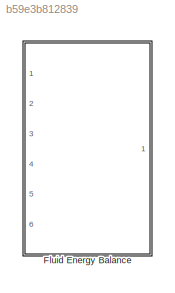
MODEL slx_b59e3b812839
KIND library
CONFIG AbsTol = auto
CONFIG FixedStep = auto
CONFIG MaxStep = auto
CONFIG MinStep = auto
CONFIG RelTol = 1e-3
CONFIG SampleTimeConstraint = Unconstrained
CONFIG Solver = ode45
CONFIG SolverMode = Auto
CONFIG SolverName = ode45
CONFIG StartTime = 0.0
CONFIG StopTime = 10.0
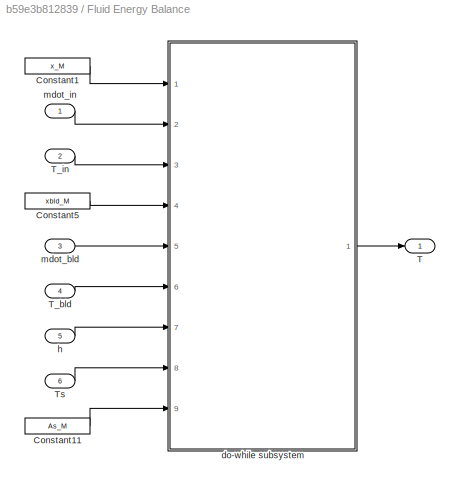
BLOCK [SubSystem] Fluid Energy Balance
  Ports = [6, 1]
  RequestExecContextInheritance = off
BLOCK [Constant] Fluid Energy Balance/Constant1
  Value = x_M
BLOCK [Constant] Fluid Energy Balance/Constant11
  Value = As_M
BLOCK [Constant] Fluid Energy Balance/Constant5
  Value = xbld_M
BLOCK [Outport] Fluid Energy Balance/T
  IconDisplay = Port number
BLOCK [Inport] Fluid Energy Balance/T_bld
  IconDisplay = Port number
  Port = 4
BLOCK [Inport] Fluid Energy Balance/T_in
  IconDisplay = Port number
  Port = 2
BLOCK [Inport] Fluid Energy Balance/Ts
  IconDisplay = Port number
  Port = 6
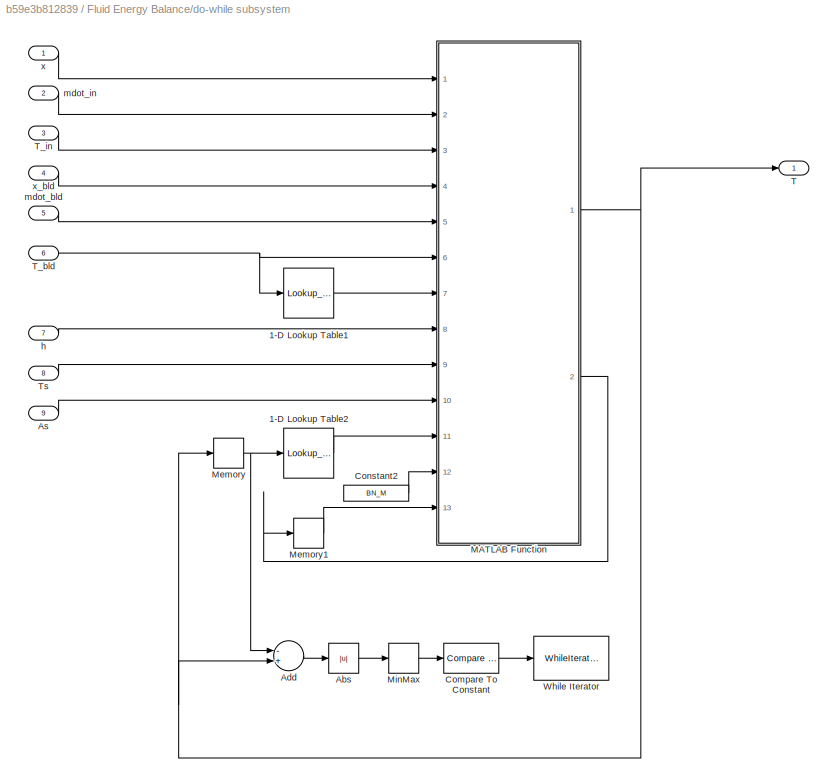
BLOCK [SubSystem] Fluid Energy Balance/do-while subsystem
  Ports = [9, 1]
  RequestExecContextInheritance = off
BLOCK [Lookup_n-D] Fluid Energy Balance/do-while subsystem/1-D Lookup Table1
  BreakpointsForDimension1 = TData_M
  InternalRulePriority = Speed
  NumberOfTableDimensions = 1
  Ports = [1, 1]
  RndMeth = Simplest
  Table = CpData_M
BLOCK [Lookup_n-D] Fluid Energy Balance/do-while subsystem/1-D Lookup Table2
  BreakpointsForDimension1 = TData_M
  InternalRulePriority = Speed
  NumberOfTableDimensions = 1
  Ports = [1, 1]
  RndMeth = Simplest
  Table = CpData_M
BLOCK [Abs] Fluid Energy Balance/do-while subsystem/Abs
  SaturateOnIntegerOverflow = off
BLOCK [Sum] Fluid Energy Balance/do-while subsystem/Add
  InputSameDT = off
  Inputs = -+
  OutDataTypeStr = Inherit: Inherit via internal rule
  Ports = [2, 1]
  SaturateOnIntegerOverflow = off
BLOCK [Inport] Fluid Energy Balance/do-while subsystem/As
  IconDisplay = Port number
  Port = 9
BLOCK [Reference] Fluid Energy Balance/do-while subsystem/Compare To Constant  REF=simulink/Logic and Bit
Operations/Compare
To Constant
  OutDataTypeStr = boolean
  Ports = [1, 1]
  SourceBlock = simulink/Logic and Bit\nOperations/Compare\nTo Constant
  SourceType = Compare To Constant
  ZeroCross = on
  const = 0.001
  relop = >=
BLOCK [Constant] Fluid Energy Balance/do-while subsystem/Constant2
  Value = BN_M
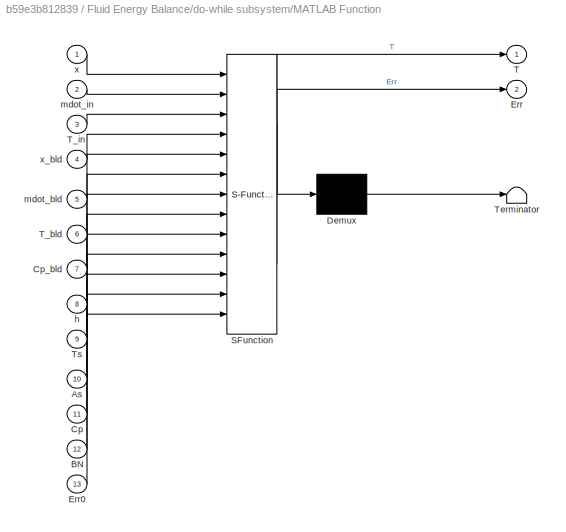
BLOCK [SubSystem] Fluid Energy Balance/do-while subsystem/MATLAB Function
  ErrorFcn = Stateflow.Translate.translate
  PermitHierarchicalResolution = ExplicitOnly
  Ports = [13, 2]
  RequestExecContextInheritance = off
  SFBlockType = MATLAB Function
  TreatAsAtomicUnit = on
BLOCK [Demux] Fluid Energy Balance/do-while subsystem/MATLAB Function/ Demux 
  Outputs = 1
  Ports = [1, 1]
BLOCK [S-Function] Fluid Energy Balance/do-while subsystem/MATLAB Function/ SFunction 
  EnableBusSupport = on
  FunctionName = sf_sfun
  PortCounts = [13 3]
  Ports = [13, 3]
  Tag = Stateflow S-Function lib_Convection_FluidEnergyBalance 1
BLOCK [Terminator] Fluid Energy Balance/do-while subsystem/MATLAB Function/ Terminator 
BLOCK [Inport] Fluid Energy Balance/do-while subsystem/MATLAB Function/As
  IconDisplay = Port number
  Port = 10
BLOCK [Inport] Fluid Energy Balance/do-while subsystem/MATLAB Function/BN
  IconDisplay = Port number
  Port = 12
BLOCK [Inport] Fluid Energy Balance/do-while subsystem/MATLAB Function/Cp
  IconDisplay = Port number
  Port = 11
BLOCK [Inport] Fluid Energy Balance/do-while subsystem/MATLAB Function/Cp_bld
  IconDisplay = Port number
  Port = 7
BLOCK [Outport] Fluid Energy Balance/do-while subsystem/MATLAB Function/Err
  IconDisplay = Port number
  Port = 2
BLOCK [Inport] Fluid Energy Balance/do-while subsystem/MATLAB Function/Err0
  IconDisplay = Port number
  Port = 13
BLOCK [Outport] Fluid Energy Balance/do-while subsystem/MATLAB Function/T
  IconDisplay = Port number
BLOCK [Inport] Fluid Energy Balance/do-while subsystem/MATLAB Function/T_bld
  IconDisplay = Port number
  Port = 6
BLOCK [Inport] Fluid Energy Balance/do-while subsystem/MATLAB Function/T_in
  IconDisplay = Port number
  Port = 3
BLOCK [Inport] Fluid Energy Balance/do-while subsystem/MATLAB Function/Ts
  IconDisplay = Port number
  Port = 9
BLOCK [Inport] Fluid Energy Balance/do-while subsystem/MATLAB Function/h
  IconDisplay = Port number
  Port = 8
BLOCK [Inport] Fluid Energy Balance/do-while subsystem/MATLAB Function/mdot_bld
  IconDisplay = Port number
  Port = 5
BLOCK [Inport] Fluid Energy Balance/do-while subsystem/MATLAB Function/mdot_in
  IconDisplay = Port number
  Port = 2
BLOCK [Inport] Fluid Energy Balance/do-while subsystem/MATLAB Function/x
  IconDisplay = Port number
BLOCK [Inport] Fluid Energy Balance/do-while subsystem/MATLAB Function/x_bld
  IconDisplay = Port number
  Port = 4
BLOCK [Memory] Fluid Energy Balance/do-while subsystem/Memory
  InheritSampleTime = on
  X0 = Tin0_M*ones(1,length(x_M))
BLOCK [Memory] Fluid Energy Balance/do-while subsystem/Memory1
  InheritSampleTime = on
  X0 = zeros(1,37)
BLOCK [MinMax] Fluid Energy Balance/do-while subsystem/MinMax
  Function = max
  InputSameDT = off
  Ports = [1, 1]
  SaturateOnIntegerOverflow = off
BLOCK [Outport] Fluid Energy Balance/do-while subsystem/T
  IconDisplay = Port number
BLOCK [Inport] Fluid Energy Balance/do-while subsystem/T_bld
  IconDisplay = Port number
  Port = 6
BLOCK [Inport] Fluid Energy Balance/do-while subsystem/T_in
  IconDisplay = Port number
  Port = 3
BLOCK [Inport] Fluid Energy Balance/do-while subsystem/Ts
  IconDisplay = Port number
  Port = 8
BLOCK [WhileIterator] Fluid Energy Balance/do-while subsystem/While Iterator
  MaxIters = 1000
  Ports = [1]
  WhileBlockType = do-while
BLOCK [Inport] Fluid Energy Balance/do-while subsystem/h
  IconDisplay = Port number
  Port = 7
BLOCK [Inport] Fluid Energy Balance/do-while subsystem/mdot_bld
  IconDisplay = Port number
  Port = 5
BLOCK [Inport] Fluid Energy Balance/do-while subsystem/mdot_in
  IconDisplay = Port number
  Port = 2
BLOCK [Inport] Fluid Energy Balance/do-while subsystem/x
  IconDisplay = Port number
BLOCK [Inport] Fluid Energy Balance/do-while subsystem/x_bld
  IconDisplay = Port number
  Port = 4
BLOCK [Inport] Fluid Energy Balance/h
  IconDisplay = Port number
  Port = 5
BLOCK [Inport] Fluid Energy Balance/mdot_bld
  IconDisplay = Port number
  Port = 3
BLOCK [Inport] Fluid Energy Balance/mdot_in
  IconDisplay = Port number
CHART Fluid Energy Balance/do-while subsystem/MATLAB Function states=1 transitions=1
  STATE_LABEL 'eML_blk_kernel()'
  STATE_LABEL "SCRIPT:\nfunction [T,Err] = FlowEnergyBal(x,mdot_in,T_in,x_bld,mdot_bld,T_bld,Cp_bld,h,Ts,As,Cp,BN,Err0)\n%#codegen\n\n%error/warning checks ----------------------------------------------------%\n\nErr = Err0;\nErrNum = 1;\n\n%---- x ----%\n%length > 1?\nif length(x) < 2 && Err(ErrNum) < 1\n    Err(ErrNum) = 1;\n    fprintf('Warning in %s: x_M must be a 1-D array of at least 2 elements.\\n',char(BN));\nend\nErrNu...<+3608ch>"
